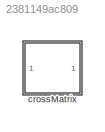
MODEL slx_2381149ac809
KIND model
CONFIG AbsTol = auto
CONFIG EnableMultiTasking = off
CONFIG FixedStep = auto
CONFIG MaxStep = auto
CONFIG MinStep = auto
CONFIG RelTol = 1e-3
CONFIG SampleTimeConstraint = Unconstrained
CONFIG Solver = VariableStepAuto
CONFIG SolverName = VariableStepAuto
CONFIG StartTime = 0.0
CONFIG StopTime = 10.0
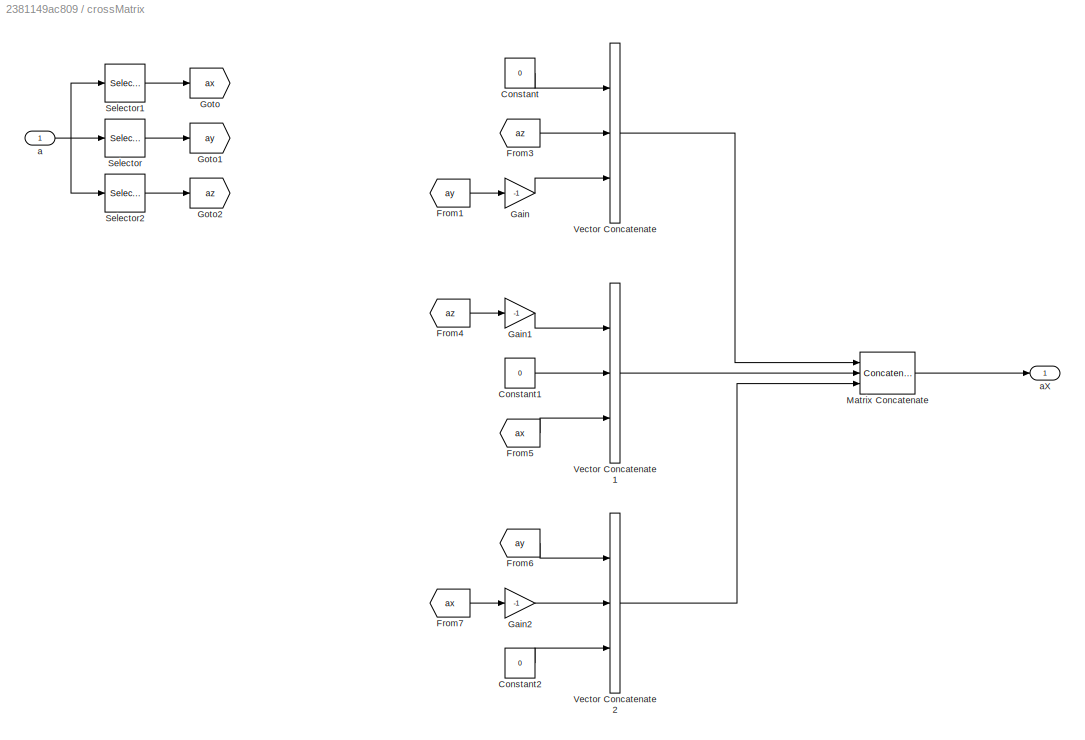
BLOCK [SubSystem] crossMatrix 
  Ports = [1, 1]
  RequestExecContextInheritance = off
BLOCK [Constant] crossMatrix /Constant
  Value = 0
BLOCK [Constant] crossMatrix /Constant1
  Value = 0
BLOCK [Constant] crossMatrix /Constant2
  Value = 0
BLOCK [From] crossMatrix /From1
  GotoTag = ay
BLOCK [From] crossMatrix /From3
  GotoTag = az
BLOCK [From] crossMatrix /From4
  GotoTag = az
BLOCK [From] crossMatrix /From5
  GotoTag = ax
BLOCK [From] crossMatrix /From6
  GotoTag = ay
BLOCK [From] crossMatrix /From7
  GotoTag = ax
BLOCK [Gain] crossMatrix /Gain
  Gain = -1
  OutDataTypeStr = Inherit: Inherit via internal rule
  ParamDataTypeStr = Inherit: Inherit via internal rule
  SaturateOnIntegerOverflow = off
BLOCK [Gain] crossMatrix /Gain1
  Gain = -1
  OutDataTypeStr = Inherit: Inherit via internal rule
  ParamDataTypeStr = Inherit: Inherit via internal rule
  SaturateOnIntegerOverflow = off
BLOCK [Gain] crossMatrix /Gain2
  Gain = -1
  OutDataTypeStr = Inherit: Inherit via internal rule
  ParamDataTypeStr = Inherit: Inherit via internal rule
  SaturateOnIntegerOverflow = off
BLOCK [Goto] crossMatrix /Goto
  GotoTag = ax
BLOCK [Goto] crossMatrix /Goto1
  GotoTag = ay
BLOCK [Goto] crossMatrix /Goto2
  GotoTag = az
BLOCK [Concatenate] crossMatrix /Matrix Concatenate
  ConcatenateDimension = 2
  Mode = Multidimensional array
  NumInputs = 3
  Ports = [3, 1]
BLOCK [Selector] crossMatrix /Selector
  IndexOptions = Index vector (dialog)
  Indices = 2
  InputPortWidth = 3
  OutputSizes = 1
  Ports = [1, 1]
BLOCK [Selector] crossMatrix /Selector1
  IndexOptions = Index vector (dialog)
  Indices = 1
  InputPortWidth = 3
  OutputSizes = 1
  Ports = [1, 1]
BLOCK [Selector] crossMatrix /Selector2
  IndexOptions = Index vector (dialog)
  Indices = 3
  InputPortWidth = 3
  OutputSizes = 1
  Ports = [1, 1]
BLOCK [Concatenate] crossMatrix /Vector Concatenate
  NumInputs = 3
  Ports = [3, 1]
BLOCK [Concatenate] crossMatrix /Vector Concatenate1
  NumInputs = 3
  Ports = [3, 1]
BLOCK [Concatenate] crossMatrix /Vector Concatenate2
  NumInputs = 3
  Ports = [3, 1]
BLOCK [Inport] crossMatrix /a
  IconDisplay = Port number
BLOCK [Outport] crossMatrix /aX
  IconDisplay = Port number
LINE crossMatrix /Constant1:1 -> crossMatrix /Vector Concatenate1:2
LINE crossMatrix /Constant2:1 -> crossMatrix /Vector Concatenate2:3
LINE crossMatrix /Constant:1 -> crossMatrix /Vector Concatenate:1
LINE crossMatrix /From1:1 -> crossMatrix /Gain:1
LINE crossMatrix /From3:1 -> crossMatrix /Vector Concatenate:2
LINE crossMatrix /From4:1 -> crossMatrix /Gain1:1
LINE crossMatrix /From5:1 -> crossMatrix /Vector Concatenate1:3
LINE crossMatrix /From6:1 -> crossMatrix /Vector Concatenate2:1
LINE crossMatrix /From7:1 -> crossMatrix /Gain2:1
LINE crossMatrix /Gain1:1 -> crossMatrix /Vector Concatenate1:1
LINE crossMatrix /Gain2:1 -> crossMatrix /Vector Concatenate2:2
LINE crossMatrix /Gain:1 -> crossMatrix /Vector Concatenate:3
LINE crossMatrix /Matrix Concatenate:1 -> crossMatrix /aX:1
LINE crossMatrix /Selector1:1 -> crossMatrix /Goto:1
LINE crossMatrix /Selector2:1 -> crossMatrix /Goto2:1
LINE crossMatrix /Selector:1 -> crossMatrix /Goto1:1
LINE crossMatrix /Vector Concatenate1:1 -> crossMatrix /Matrix Concatenate:2
LINE crossMatrix /Vector Concatenate2:1 -> crossMatrix /Matrix Concatenate:3
LINE crossMatrix /Vector Concatenate:1 -> crossMatrix /Matrix Concatenate:1
NET crossMatrix /a:1 -> crossMatrix /Selector1:1, crossMatrix /Selector2:1, crossMatrix /Selector:1
note: NET lines group one-source signal fan-out (src -> all destinations, sorted); 1:1 wires keep LINE
